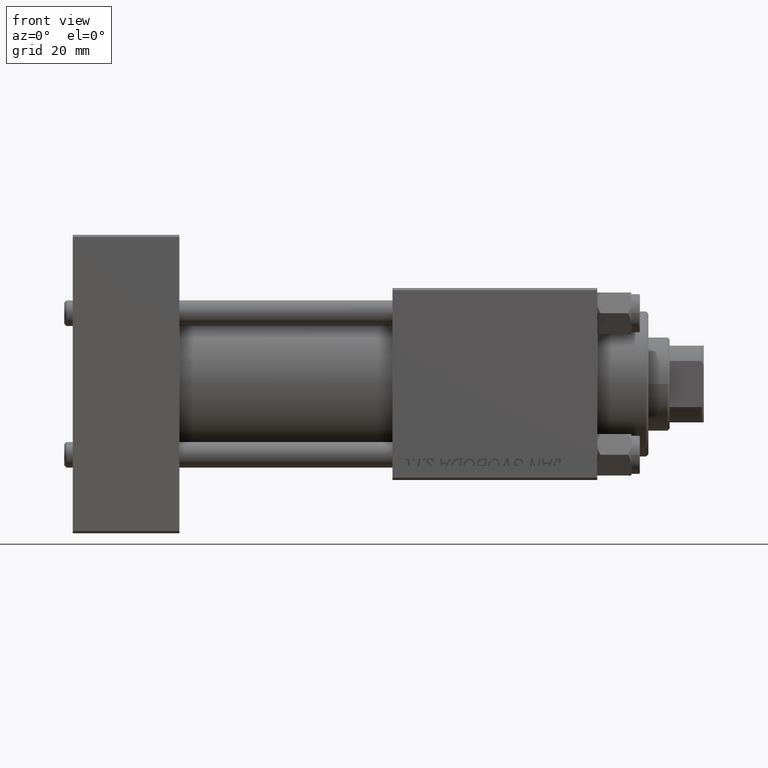
[diagram: clean part render]
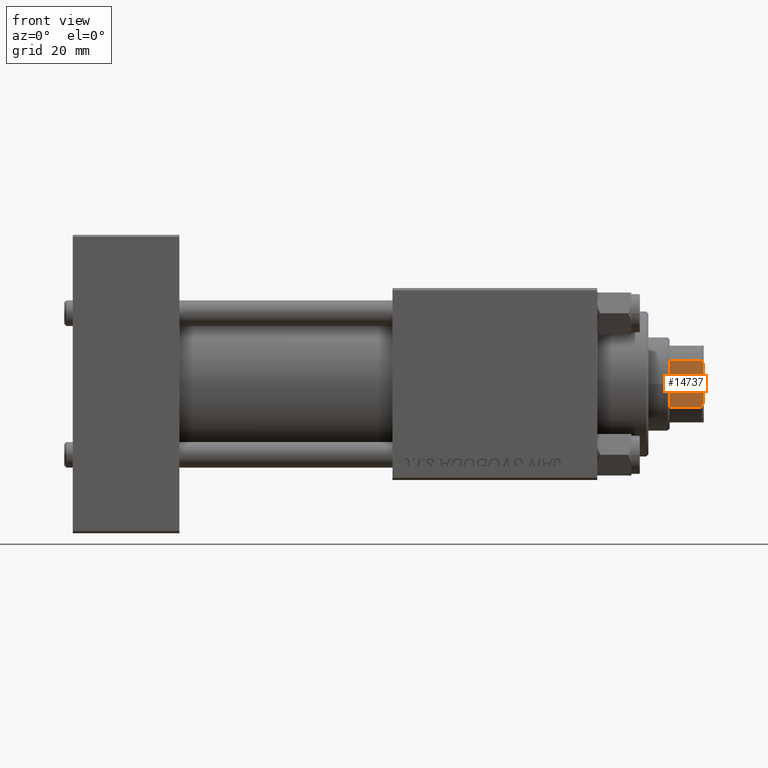
[diagram: same view with one face highlighted and labeled with its STEP entity id]
A machine part, front view. The second image highlights one B-rep face of the part: STEP entity #14737.
In plain terms, the highlighted planar face has unit normal (0, 1, 0).
Its self-contained STEP definition (entity closure, byte-faithful):
#1073 = VECTOR ( 'NONE', #37563, 1000.000000000000000 ) ;
#1287 = VECTOR ( 'NONE', #31487, 1000.000000000000000 ) ;
#1473 = EDGE_LOOP ( 'NONE', ( #7187, #29053, #10695, #48514, #32424, #7210 ) ) ;
#2104 = CARTESIAN_POINT ( 'NONE',  ( 8.999999999999996447, 5.408326913195991459, 122.4999999999999716 ) ) ;
#2682 = DIRECTION ( 'NONE',  ( -1.927470528863119049E-16, 1.000000000000000000, -0.000000000000000000 ) ) ;
#3383 = EDGE_CURVE ( 'NONE', #3748, #45243, #22464, .T. ) ;
#3748 = VERTEX_POINT ( 'NONE', #23164 ) ;
#3971 = CARTESIAN_POINT ( 'NONE',  ( 8.999999999999996447, -5.408326913195990571, -0.001000000000001000089 ) ) ;
#5472 = CARTESIAN_POINT ( 'NONE',  ( 8.999999999999998224, -4.358898943540672200, 123.0000000000000000 ) ) ;
#7187 = ORIENTED_EDGE ( 'NONE', *, *, #27087, .T. ) ;
#7210 = ORIENTED_EDGE ( 'NONE', *, *, #34318, .T. ) ;
#8996 = CARTESIAN_POINT ( 'NONE',  ( 8.999999999999996447, -5.408326913195990571, 115.0000000000000284 ) ) ;
#10166 = PLANE ( 'NONE',  #32477 ) ;
#10695 = ORIENTED_EDGE ( 'NONE', *, *, #35506, .F. ) ;
#12064 = LINE ( 'NONE', #45919, #1287 ) ;
#12503 = VERTEX_POINT ( 'NONE', #8996 ) ;
#13734 = CARTESIAN_POINT ( 'NONE',  ( 8.999999999999998224, 4.358898943540600257, 123.0000000000000000 ) ) ;
#14272 = VERTEX_POINT ( 'NONE', #26237 ) ;
#14737 = ADVANCED_FACE ( 'NONE', ( #37150 ), #10166, .F. ) ;
#15069 = EDGE_CURVE ( 'NONE', #12503, #27707, #22691, .T. ) ;
#17115 = CARTESIAN_POINT ( 'NONE',  ( 9.000000000000000000, -4.714305797500252027, 122.8450817439748448 ) ) ;
#17278 = CARTESIAN_POINT ( 'NONE',  ( 8.999999999999996447, -5.408326913195990571, 122.5000000000000000 ) ) ;
#17519 = CARTESIAN_POINT ( 'NONE',  ( 8.999999999999996447, 5.063687070142427693, 122.6775166608138932 ) ) ;
#21770 = DIRECTION ( 'NONE',  ( 1.927470528863119049E-16, -1.000000000000000000, 0.000000000000000000 ) ) ;
#22464 = B_SPLINE_CURVE_WITH_KNOTS ( 'NONE', 3,
 ( #2104, #17519, #48340, #13734 ),
 .UNSPECIFIED., .F., .F.,
 ( 4, 4 ),
 ( 0.000000000000000000, 0.001162453897363273890 ),
 .UNSPECIFIED. ) ;
#22691 = LINE ( 'NONE', #3971, #26870 ) ;
#22813 = CARTESIAN_POINT ( 'NONE',  ( 8.999999999999998224, 4.358898943540600257, 123.0000000000000000 ) ) ;
#23164 = CARTESIAN_POINT ( 'NONE',  ( 8.999999999999996447, 5.408326913195991459, 122.4999999999999716 ) ) ;
#26237 = CARTESIAN_POINT ( 'NONE',  ( 8.999999999999998224, -4.358898943540672200, 123.0000000000000000 ) ) ;
#26536 = CARTESIAN_POINT ( 'NONE',  ( 8.999999999999996447, 8.999999999999998224, 123.0000000000000000 ) ) ;
#26870 = VECTOR ( 'NONE', #27215, 1000.000000000000000 ) ;
#27087 = EDGE_CURVE ( 'NONE', #47345, #3748, #42348, .T. ) ;
#27215 = DIRECTION ( 'NONE',  ( -0.000000000000000000, -0.000000000000000000, 1.000000000000000000 ) ) ;
#27707 = VERTEX_POINT ( 'NONE', #17278 ) ;
#27778 = B_SPLINE_CURVE_WITH_KNOTS ( 'NONE', 3,
 ( #5472, #17115, #32504, #47946 ),
 .UNSPECIFIED., .F., .F.,
 ( 4, 4 ),
 ( 0.000000000000000000, 0.001162453897363195177 ),
 .UNSPECIFIED. ) ;
#29053 = ORIENTED_EDGE ( 'NONE', *, *, #3383, .T. ) ;
#30467 = CARTESIAN_POINT ( 'NONE',  ( 8.999999999999996447, 5.408326913195991459, -0.001000000000001000089 ) ) ;
#31487 = DIRECTION ( 'NONE',  ( -1.927470528863119049E-16, 1.000000000000000000, -0.000000000000000000 ) ) ;
#32424 = ORIENTED_EDGE ( 'NONE', *, *, #15069, .F. ) ;
#32477 = AXIS2_PLACEMENT_3D ( 'NONE', #26536, #33606, #21770 ) ;
#32504 = CARTESIAN_POINT ( 'NONE',  ( 9.000000000000000000, -5.063687070142444568, 122.6775166608139216 ) ) ;
#33606 = DIRECTION ( 'NONE',  ( -1.000000000000000000, -1.927470528863119049E-16, 0.000000000000000000 ) ) ;
#34318 = EDGE_CURVE ( 'NONE', #12503, #47345, #12064, .T. ) ;
#35506 = EDGE_CURVE ( 'NONE', #14272, #45243, #45629, .T. ) ;
#37150 = FACE_OUTER_BOUND ( 'NONE', #1473, .T. ) ;
#37169 = CARTESIAN_POINT ( 'NONE',  ( 8.999999999999996447, 5.408326913195991459, 115.0000000000000284 ) ) ;
#37563 = DIRECTION ( 'NONE',  ( -0.000000000000000000, -0.000000000000000000, 1.000000000000000000 ) ) ;
#41329 = CARTESIAN_POINT ( 'NONE',  ( 8.999999999999996447, 8.999999999999998224, 123.0000000000000000 ) ) ;
#42348 = LINE ( 'NONE', #30467, #1073 ) ;
#44842 = EDGE_CURVE ( 'NONE', #14272, #27707, #27778, .T. ) ;
#44934 = VECTOR ( 'NONE', #2682, 1000.000000000000000 ) ;
#45243 = VERTEX_POINT ( 'NONE', #22813 ) ;
#45629 = LINE ( 'NONE', #41329, #44934 ) ;
#45919 = CARTESIAN_POINT ( 'NONE',  ( 8.999999999999996447, 8.999999999999998224, 115.0000000000000000 ) ) ;
#47345 = VERTEX_POINT ( 'NONE', #37169 ) ;
#47946 = CARTESIAN_POINT ( 'NONE',  ( 8.999999999999996447, -5.408326913195990571, 122.5000000000000000 ) ) ;
#48340 = CARTESIAN_POINT ( 'NONE',  ( 8.999999999999998224, 4.714305797500204065, 122.8450817439748306 ) ) ;
#48514 = ORIENTED_EDGE ( 'NONE', *, *, #44842, .T. ) ;